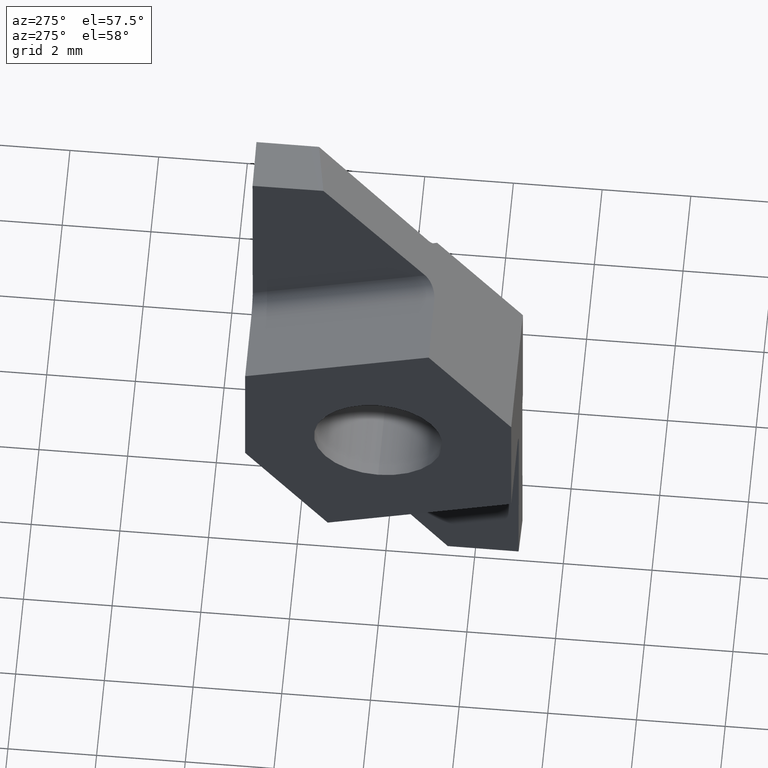
[diagram: clean part render]
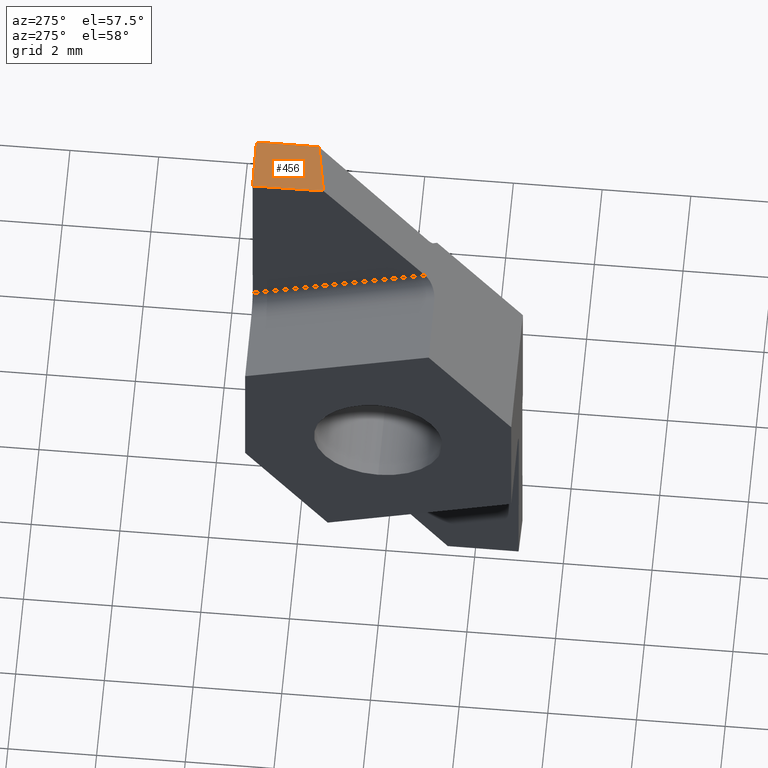
[diagram: same view with one face highlighted and labeled with its STEP entity id]
A machine part, auxiliary view. The second image highlights one B-rep face of the part: STEP entity #456.
In plain terms, the highlighted planar face has unit normal (0.2588, 0, -0.9659).
Its self-contained STEP definition (entity closure, byte-faithful):
#29 = DIRECTION ( 'NONE',  ( -0.9504440842960546476, -0.1783223612929410173, -0.2546707248380619681 ) ) ;
#30 = VERTEX_POINT ( 'NONE', #159 ) ;
#39 = VECTOR ( 'NONE', #192, 1000.000000000000114 ) ;
#50 = CARTESIAN_POINT ( 'NONE',  ( 1.834532862608347692, 29.67704931971491433, 7.211829449049698582 ) ) ;
#72 = VECTOR ( 'NONE', #78, 1000.000000000000227 ) ;
#78 = DIRECTION ( 'NONE',  ( 0.9659258262890692004, 0.000000000000000000, 0.2588190451025171868 ) ) ;
#109 = EDGE_CURVE ( 'NONE', #371, #273, #487, .T. ) ;
#154 = EDGE_CURVE ( 'NONE', #30, #242, #579, .T. ) ;
#159 = CARTESIAN_POINT ( 'NONE',  ( 1.909999999999999698, 2.999999999999836131, 7.232050807568879414 ) ) ;
#192 = DIRECTION ( 'NONE',  ( -0.002828904082893561947, 0.9999957113577047085, -0.0007580025644764245034 ) ) ;
#198 = CARTESIAN_POINT ( 'NONE',  ( 1.914519305005153882, 1.402460638096504342, 7.233261751695358122 ) ) ;
#203 = EDGE_LOOP ( 'NONE', ( #484, #297, #500, #476 ) ) ;
#223 = CARTESIAN_POINT ( 'NONE',  ( 1.909999999999999698, 31.03959590644371858, 7.232050807568879414 ) ) ;
#233 = LINE ( 'NONE', #421, #450 ) ;
#242 = VERTEX_POINT ( 'NONE', #597 ) ;
#273 = VERTEX_POINT ( 'NONE', #198 ) ;
#296 = VECTOR ( 'NONE', #29, 1000.000000000000227 ) ;
#297 = ORIENTED_EDGE ( 'NONE', *, *, #472, .F. ) ;
#309 = EDGE_CURVE ( 'NONE', #273, #30, #591, .T. ) ;
#321 = CARTESIAN_POINT ( 'NONE',  ( 0.8824970515110891478, 2.999999999999831246, 6.956732222300685109 ) ) ;
#364 = DIRECTION ( 'NONE',  ( -0.002842164953597773117, -0.9999956710561971329, -0.0007615558040725512942 ) ) ;
#369 = DIRECTION ( 'NONE',  ( 0.2588190451025171868, 0.000000000000000000, -0.9659258262890693114 ) ) ;
#371 = VERTEX_POINT ( 'NONE', #416 ) ;
#416 = CARTESIAN_POINT ( 'NONE',  ( 2.905988210179870190, 1.588480078104101523, 7.498925044157489950 ) ) ;
#421 = CARTESIAN_POINT ( 'NONE',  ( 2.985773613490560585, 29.66041088675302717, 7.520303478542380127 ) ) ;
#429 = FACE_OUTER_BOUND ( 'NONE', #203, .T. ) ;
#450 = VECTOR ( 'NONE', #364, 999.9999999999998863 ) ;
#456 = ADVANCED_FACE ( 'NONE', ( #429 ), #581, .F. ) ;
#472 = EDGE_CURVE ( 'NONE', #242, #371, #233, .T. ) ;
#476 = ORIENTED_EDGE ( 'NONE', *, *, #309, .F. ) ;
#484 = ORIENTED_EDGE ( 'NONE', *, *, #109, .F. ) ;
#487 = LINE ( 'NONE', #490, #296 ) ;
#490 = CARTESIAN_POINT ( 'NONE',  ( 3.112022366277341856, 1.627136215618504300, 7.554131729897035186 ) ) ;
#500 = ORIENTED_EDGE ( 'NONE', *, *, #154, .F. ) ;
#532 = AXIS2_PLACEMENT_3D ( 'NONE', #223, #369, #623 ) ;
#579 = LINE ( 'NONE', #321, #72 ) ;
#581 = PLANE ( 'NONE',  #532 ) ;
#591 = LINE ( 'NONE', #50, #39 ) ;
#597 = CARTESIAN_POINT ( 'NONE',  ( 2.909999999999982823, 2.999999999988026023, 7.499999999999992895 ) ) ;
#623 = DIRECTION ( 'NONE',  ( -0.9659258262890693114, 0.000000000000000000, -0.2588190451025171868 ) ) ;